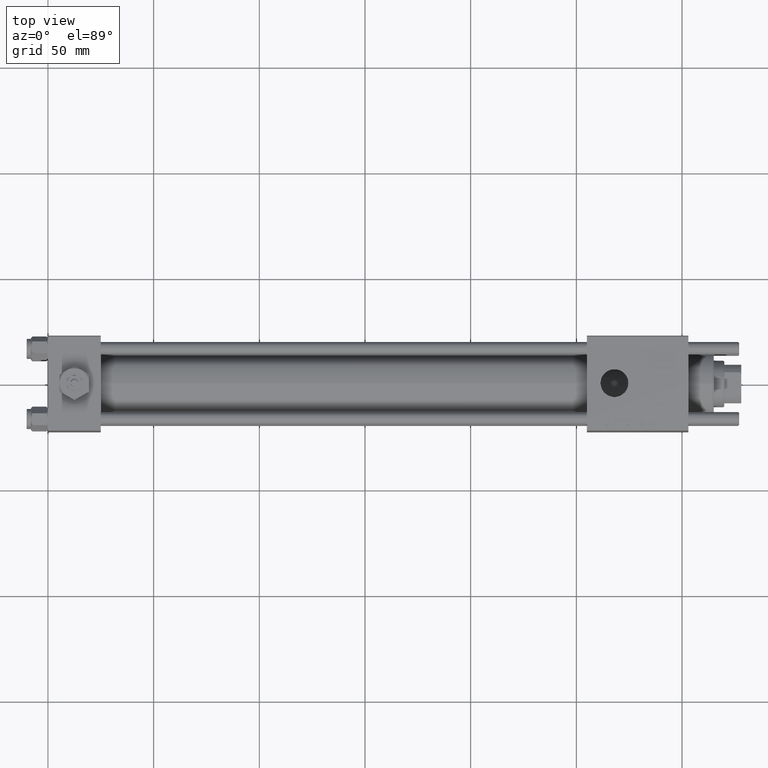
[diagram: clean part render]
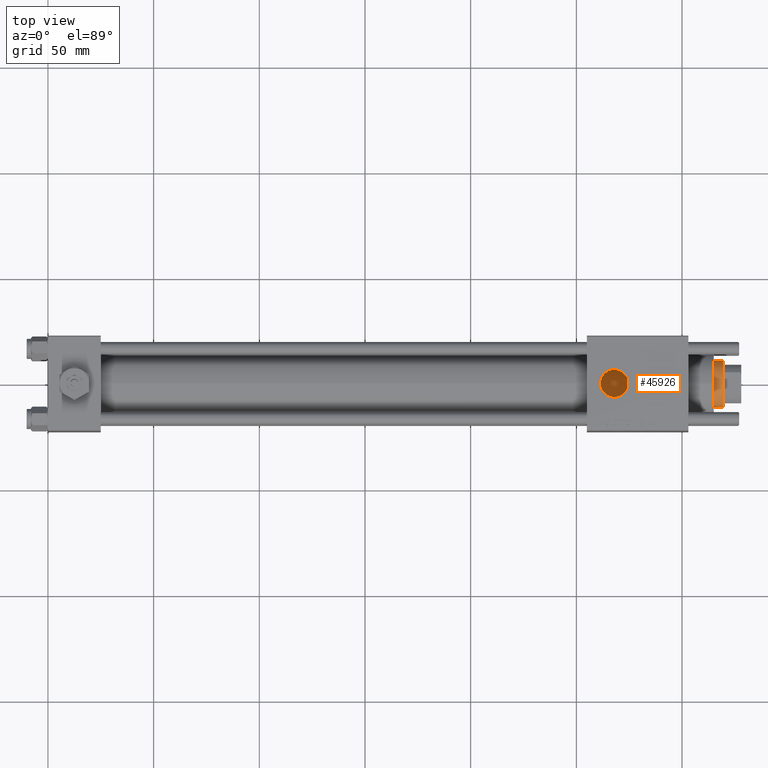
[diagram: same view with one face highlighted and labeled with its STEP entity id]
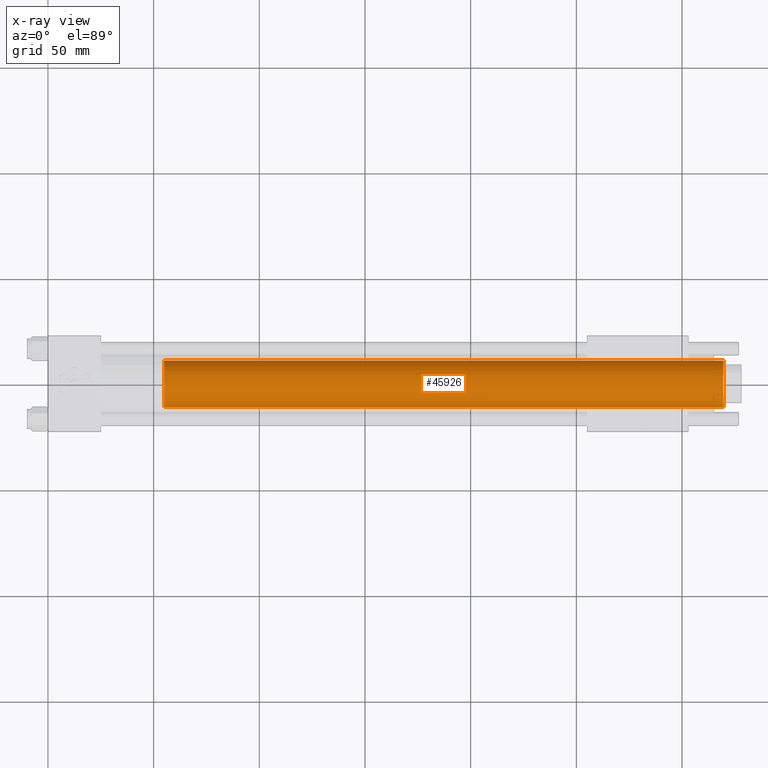
[diagram: x-ray of the same camera — body ghosted, the highlighted face saturated]
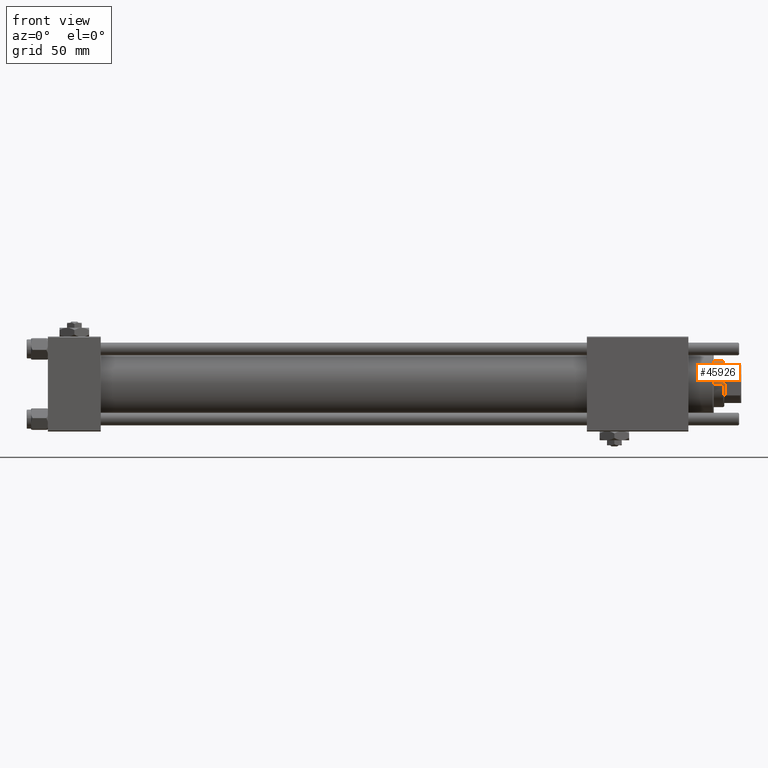
[diagram: same view with one face highlighted and labeled with its STEP entity id]
A machine part, top view. The second image highlights one B-rep face of the part: STEP entity #45926.
The next image is the same camera in x-ray: the body ghosted, the highlighted face saturated — about 0% of this face is hidden behind the body in this view.
A second angle (front view) of the same face is appended — the face is thin or edge-on in the first view.
In plain terms, the highlighted cylindrical surface (edge-blend (fillet) strip) has radius 11 mm, axis along (-1, 0, 0).
Its self-contained STEP definition (entity closure, byte-faithful):
#787 = VERTEX_POINT ( 'NONE', #10196 ) ;
#3061 = VERTEX_POINT ( 'NONE', #10894 ) ;
#8390 = DIRECTION ( 'NONE',  ( -0.000000000000000000, -0.000000000000000000, -1.000000000000000000 ) ) ;
#10196 = CARTESIAN_POINT ( 'NONE',  ( -11.00000000000000000, 0.000000000000000000, 294.5000000000001137 ) ) ;
#10587 = CARTESIAN_POINT ( 'NONE',  ( 11.00000000000000000, 1.347111479062088405E-15, 294.5000000000001137 ) ) ;
#10894 = CARTESIAN_POINT ( 'NONE',  ( -11.00000000000000000, 0.000000000000000000, 30.00000000000000000 ) ) ;
#15264 = EDGE_CURVE ( 'NONE', #787, #3061, #50289, .T. ) ;
#17368 = DIRECTION ( 'NONE',  ( 0.000000000000000000, 0.000000000000000000, 1.000000000000000000 ) ) ;
#18101 = CARTESIAN_POINT ( 'NONE',  ( 0.000000000000000000, 0.000000000000000000, 295.0000000000000568 ) ) ;
#20651 = DIRECTION ( 'NONE',  ( 0.000000000000000000, 0.000000000000000000, -1.000000000000000000 ) ) ;
#20986 = EDGE_LOOP ( 'NONE', ( #26351, #36529, #31376, #33795 ) ) ;
#22355 = CIRCLE ( 'NONE', #56269, 11.00000000000000000 ) ;
#26351 = ORIENTED_EDGE ( 'NONE', *, *, #39609, .F. ) ;
#27776 = DIRECTION ( 'NONE',  ( -1.000000000000000000, 0.000000000000000000, 0.000000000000000000 ) ) ;
#29459 = DIRECTION ( 'NONE',  ( -0.000000000000000000, -0.000000000000000000, -1.000000000000000000 ) ) ;
#29689 = EDGE_CURVE ( 'NONE', #3061, #35672, #22355, .T. ) ;
#30091 = CARTESIAN_POINT ( 'NONE',  ( 0.000000000000000000, 0.000000000000000000, 30.00000000000000000 ) ) ;
#31376 = ORIENTED_EDGE ( 'NONE', *, *, #15264, .T. ) ;
#31747 = CARTESIAN_POINT ( 'NONE',  ( -11.00000000000000000, 0.000000000000000000, 295.0000000000000568 ) ) ;
#32515 = LINE ( 'NONE', #51043, #45794 ) ;
#33795 = ORIENTED_EDGE ( 'NONE', *, *, #29689, .T. ) ;
#33999 = DIRECTION ( 'NONE',  ( 1.000000000000000000, 0.000000000000000000, 0.000000000000000000 ) ) ;
#34485 = CIRCLE ( 'NONE', #37380, 11.00000000000000000 ) ;
#35672 = VERTEX_POINT ( 'NONE', #35686 ) ;
#35686 = CARTESIAN_POINT ( 'NONE',  ( 11.00000000000000000, 1.347111479062088405E-15, 30.00000000000000000 ) ) ;
#36194 = AXIS2_PLACEMENT_3D ( 'NONE', #18101, #8390, #27776 ) ;
#36529 = ORIENTED_EDGE ( 'NONE', *, *, #57343, .T. ) ;
#37380 = AXIS2_PLACEMENT_3D ( 'NONE', #57070, #20651, #33999 ) ;
#39609 = EDGE_CURVE ( 'NONE', #50204, #35672, #32515, .T. ) ;
#41152 = FACE_OUTER_BOUND ( 'NONE', #20986, .T. ) ;
#45794 = VECTOR ( 'NONE', #29459, 1000.000000000000000 ) ;
#45926 = ADVANCED_FACE ( 'NONE', ( #41152 ), #59668, .T. ) ;
#47235 = VECTOR ( 'NONE', #49982, 1000.000000000000000 ) ;
#49982 = DIRECTION ( 'NONE',  ( -0.000000000000000000, -0.000000000000000000, -1.000000000000000000 ) ) ;
#50204 = VERTEX_POINT ( 'NONE', #10587 ) ;
#50289 = LINE ( 'NONE', #31747, #47235 ) ;
#51043 = CARTESIAN_POINT ( 'NONE',  ( 11.00000000000000000, 1.347111479062088405E-15, 295.0000000000000568 ) ) ;
#54067 = DIRECTION ( 'NONE',  ( 1.000000000000000000, 0.000000000000000000, 0.000000000000000000 ) ) ;
#56269 = AXIS2_PLACEMENT_3D ( 'NONE', #30091, #17368, #54067 ) ;
#57070 = CARTESIAN_POINT ( 'NONE',  ( 0.000000000000000000, 0.000000000000000000, 294.5000000000001137 ) ) ;
#57343 = EDGE_CURVE ( 'NONE', #50204, #787, #34485, .T. ) ;
#59668 = CYLINDRICAL_SURFACE ( 'NONE', #36194, 11.00000000000000000 ) ;